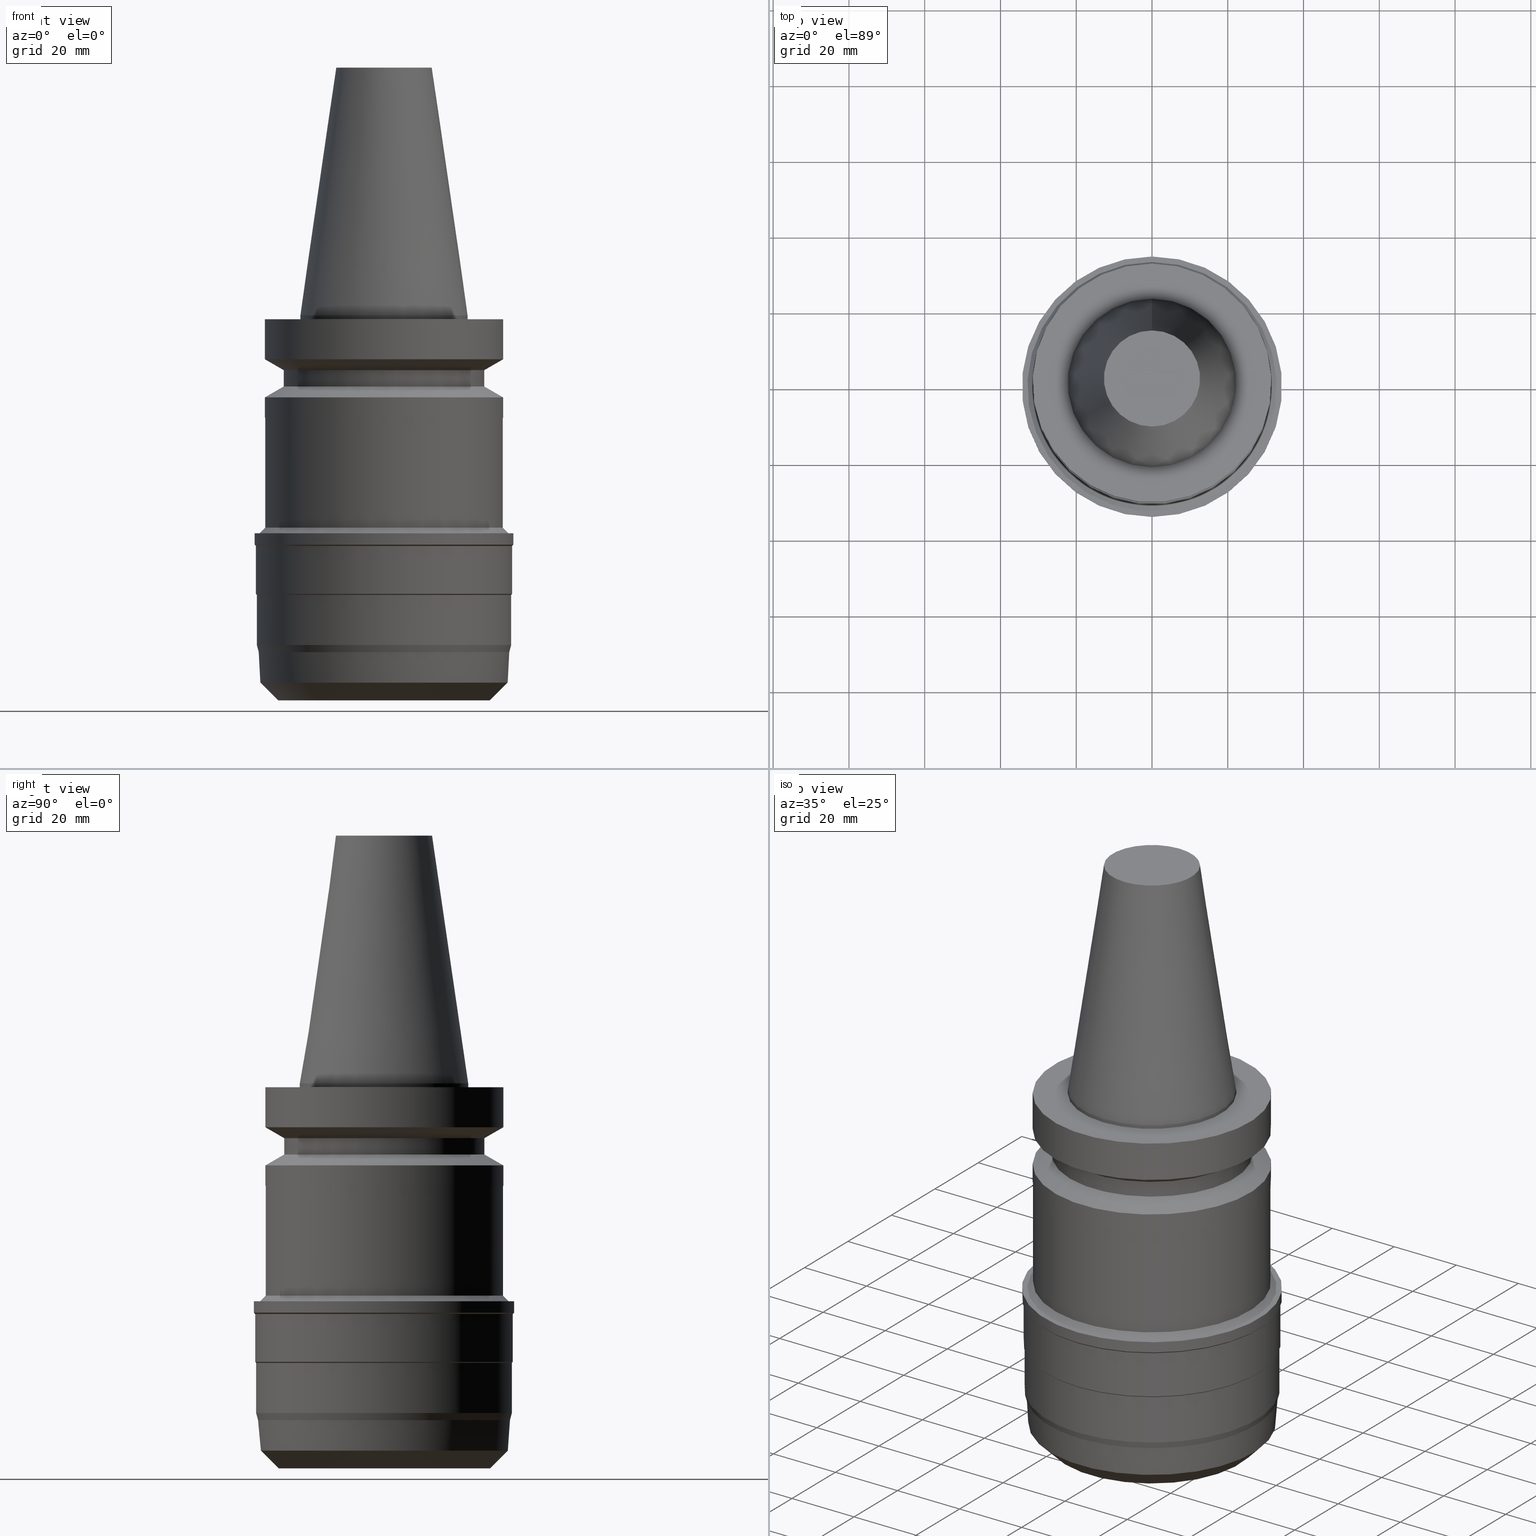
[diagram: canonical four-view strip — front | top / right | iso, engineering-drawing reading convention]
A machine part, canonical four-view strip (front | top / right | iso — engineering-drawing reading convention). The complete STEP part file that produces these views, byte-faithful:
ISO-10303-21;
HEADER;
FILE_DESCRIPTION((''),'1');
FILE_NAME('V:/90_\X2\53D65F9730C730FC30BF\X0\/00_\X2\6DE18DEF30C730FC30BF\X0\/ALL/BBT-BKUS\X2\FF76FF80FF9BFF78FF9E752852A05DE556F3\X0\201801/BBT40-HMC-S/BBT40-HMC1.250S-4.stp','2018-02-07T04:12:44',(''),(''),'Spatial Interop R21 SP3','Kubotek KeyCreator 2011 V10.0.2 (22737)',' ');
FILE_SCHEMA(('automotive_design'));
ENDSEC;
DATA;
#1=MECHANICAL_DESIGN_GEOMETRIC_PRESENTATION_REPRESENTATION(' ',(#10,#11,#12,#13,#14,#15,#16,#17,#18,#19,#20,#21,#22,#23,#24,#25,#26,#27,#28,#29,#30,#31,#32,#33,#34,#35,#36,#37,#38,#39,#40,#41,#42,#43,#44,#45,#46,#47,#48,#49,#50,#51,#52,#53),#6);
#2=PRODUCT_DEFINITION_CONTEXT('',#54,'design');
#3=APPLICATION_PROTOCOL_DEFINITION('INTERNATIONAL STANDARD','automotive_design',1994,#54);
#4=PRODUCT_CATEGORY_RELATIONSHIP('NONE','NONE',#55,#56);
#5=SHAPE_DEFINITION_REPRESENTATION(#57,#58);
#6= (GEOMETRIC_REPRESENTATION_CONTEXT(3)GLOBAL_UNCERTAINTY_ASSIGNED_CONTEXT((#61))GLOBAL_UNIT_ASSIGNED_CONTEXT((#63,#64,#65))REPRESENTATION_CONTEXT('NONE','WORKSPACE'));
#10=STYLED_ITEM('',(#67,#68),#69);
#11=STYLED_ITEM('',(#70,#71),#72);
#12=STYLED_ITEM('',(#73,#74),#75);
#13=STYLED_ITEM('',(#76),#77);
#14=STYLED_ITEM('',(#78,#79),#80);
#15=STYLED_ITEM('',(#81,#82),#83);
#16=STYLED_ITEM('',(#84),#85);
#17=STYLED_ITEM('',(#86,#87),#88);
#18=STYLED_ITEM('',(#89,#90),#91);
#19=STYLED_ITEM('',(#92),#93);
#20=STYLED_ITEM('',(#94),#95);
#21=STYLED_ITEM('',(#96),#97);
#22=STYLED_ITEM('',(#98),#99);
#23=STYLED_ITEM('',(#100),#101);
#24=STYLED_ITEM('',(#102),#103);
#25=STYLED_ITEM('',(#104,#105),#106);
#26=STYLED_ITEM('',(#107,#108),#109);
#27=STYLED_ITEM('',(#110,#111),#112);
#28=STYLED_ITEM('',(#113),#114);
#29=STYLED_ITEM('',(#115,#116),#117);
#30=STYLED_ITEM('',(#118,#119),#120);
#31=STYLED_ITEM('',(#121),#122);
#32=STYLED_ITEM('',(#123),#124);
#33=STYLED_ITEM('',(#125),#126);
#34=STYLED_ITEM('',(#127),#128);
#35=STYLED_ITEM('',(#129,#130),#131);
#36=STYLED_ITEM('',(#132,#133),#134);
#37=STYLED_ITEM('',(#135,#136),#137);
#38=STYLED_ITEM('',(#138,#139),#140);
#39=STYLED_ITEM('',(#141,#142),#143);
#40=STYLED_ITEM('',(#144),#145);
#41=STYLED_ITEM('',(#146),#147);
#42=STYLED_ITEM('',(#148,#149),#150);
#43=STYLED_ITEM('',(#151,#152),#153);
#44=STYLED_ITEM('',(#154),#155);
#45=STYLED_ITEM('',(#156),#157);
#46=STYLED_ITEM('',(#158,#159),#160);
#47=STYLED_ITEM('',(#161,#162),#163);
#48=STYLED_ITEM('',(#164),#165);
#49=STYLED_ITEM('',(#166,#167),#168);
#50=STYLED_ITEM('',(#169,#170),#171);
#51=STYLED_ITEM('',(#172),#173);
#52=STYLED_ITEM('',(#174),#175);
#53=STYLED_ITEM('',(#176),#177);
#54=APPLICATION_CONTEXT(' ');
#55=PRODUCT_CATEGORY('part','NONE');
#56=PRODUCT_RELATED_PRODUCT_CATEGORY('detail',' ',(#178));
#57=PRODUCT_DEFINITION_SHAPE('NONE','NONE',#179);
#58=ADVANCED_BREP_SHAPE_REPRESENTATION('Unnamed[1]',(#75,#180),#6);
#61=UNCERTAINTY_MEASURE_WITH_UNIT(LENGTH_MEASURE(1.0E-006),#63,'','');
#63= (CONVERSION_BASED_UNIT('MILLIMETRE',#183)LENGTH_UNIT()NAMED_UNIT(#186));
#64= (NAMED_UNIT(#188)PLANE_ANGLE_UNIT()SI_UNIT($,.RADIAN.));
#65= (NAMED_UNIT(#188)SOLID_ANGLE_UNIT()SI_UNIT($,.STERADIAN.));
#67=PRESENTATION_STYLE_ASSIGNMENT((#194));
#68=PRESENTATION_STYLE_ASSIGNMENT((#195));
#69=ADVANCED_FACE('Unnamed[1]',(#196,#197),#198,.T.);
#70=PRESENTATION_STYLE_ASSIGNMENT((#199));
#71=PRESENTATION_STYLE_ASSIGNMENT((#200));
#72=ADVANCED_FACE('Unnamed[1]',(#201,#202),#203,.T.);
#73=PRESENTATION_STYLE_ASSIGNMENT((#204));
#74=PRESENTATION_STYLE_ASSIGNMENT((#205));
#75=MANIFOLD_SOLID_BREP('Unnamed[1]',#206);
#76=PRESENTATION_STYLE_ASSIGNMENT((#207));
#77=EDGE_CURVE('Unnamed[1]',#208,#208,#209,.T.);
#78=PRESENTATION_STYLE_ASSIGNMENT((#210));
#79=PRESENTATION_STYLE_ASSIGNMENT((#211));
#80=ADVANCED_FACE('Unnamed[1]',(#212,#213),#214,.T.);
#81=PRESENTATION_STYLE_ASSIGNMENT((#215));
#82=PRESENTATION_STYLE_ASSIGNMENT((#216));
#83=ADVANCED_FACE('Unnamed[1]',(#217,#218),#219,.T.);
#84=PRESENTATION_STYLE_ASSIGNMENT((#220));
#85=EDGE_CURVE('Unnamed[1]',#221,#221,#222,.T.);
#86=PRESENTATION_STYLE_ASSIGNMENT((#223));
#87=PRESENTATION_STYLE_ASSIGNMENT((#224));
#88=ADVANCED_FACE('Unnamed[1]',(#225,#226),#227,.T.);
#89=PRESENTATION_STYLE_ASSIGNMENT((#228));
#90=PRESENTATION_STYLE_ASSIGNMENT((#229));
#91=ADVANCED_FACE('Unnamed[1]',(#230,#231),#232,.T.);
#92=PRESENTATION_STYLE_ASSIGNMENT((#233));
#93=EDGE_CURVE('Unnamed[1]',#234,#234,#235,.T.);
#94=PRESENTATION_STYLE_ASSIGNMENT((#236));
#95=EDGE_CURVE('Unnamed[1]',#237,#237,#238,.T.);
#96=PRESENTATION_STYLE_ASSIGNMENT((#239));
#97=EDGE_CURVE('Unnamed[1]',#240,#240,#241,.T.);
#98=PRESENTATION_STYLE_ASSIGNMENT((#242));
#99=EDGE_CURVE('Unnamed[1]',#243,#243,#244,.T.);
#100=PRESENTATION_STYLE_ASSIGNMENT((#245));
#101=EDGE_CURVE('Unnamed[1]',#246,#246,#247,.T.);
#102=PRESENTATION_STYLE_ASSIGNMENT((#248));
#103=EDGE_CURVE('Unnamed[1]',#249,#249,#250,.T.);
#104=PRESENTATION_STYLE_ASSIGNMENT((#251));
#105=PRESENTATION_STYLE_ASSIGNMENT((#252));
#106=ADVANCED_FACE('Unnamed[1]',(#253,#254),#255,.T.);
#107=PRESENTATION_STYLE_ASSIGNMENT((#256));
#108=PRESENTATION_STYLE_ASSIGNMENT((#257));
#109=ADVANCED_FACE('Unnamed[1]',(#258,#259),#260,.T.);
#110=PRESENTATION_STYLE_ASSIGNMENT((#261));
#111=PRESENTATION_STYLE_ASSIGNMENT((#262));
#112=ADVANCED_FACE('Unnamed[1]',(#263,#264),#265,.T.);
#113=PRESENTATION_STYLE_ASSIGNMENT((#266));
#114=EDGE_CURVE('Unnamed[1]',#267,#267,#268,.T.);
#115=PRESENTATION_STYLE_ASSIGNMENT((#269));
#116=PRESENTATION_STYLE_ASSIGNMENT((#270));
#117=ADVANCED_FACE('Unnamed[1]',(#271,#272),#273,.T.);
#118=PRESENTATION_STYLE_ASSIGNMENT((#274));
#119=PRESENTATION_STYLE_ASSIGNMENT((#275));
#120=ADVANCED_FACE('Unnamed[1]',(#276),#277,.T.);
#121=PRESENTATION_STYLE_ASSIGNMENT((#278));
#122=EDGE_CURVE('Unnamed[1]',#279,#279,#280,.T.);
#123=PRESENTATION_STYLE_ASSIGNMENT((#281));
#124=EDGE_CURVE('Unnamed[1]',#282,#282,#283,.T.);
#125=PRESENTATION_STYLE_ASSIGNMENT((#284));
#126=EDGE_CURVE('Unnamed[1]',#285,#285,#286,.T.);
#127=PRESENTATION_STYLE_ASSIGNMENT((#287));
#128=EDGE_CURVE('Unnamed[1]',#288,#288,#289,.T.);
#129=PRESENTATION_STYLE_ASSIGNMENT((#290));
#130=PRESENTATION_STYLE_ASSIGNMENT((#291));
#131=ADVANCED_FACE('Unnamed[1]',(#292,#293),#294,.T.);
#132=PRESENTATION_STYLE_ASSIGNMENT((#295));
#133=PRESENTATION_STYLE_ASSIGNMENT((#296));
#134=ADVANCED_FACE('Unnamed[1]',(#297,#298),#299,.T.);
#135=PRESENTATION_STYLE_ASSIGNMENT((#300));
#136=PRESENTATION_STYLE_ASSIGNMENT((#301));
#137=ADVANCED_FACE('Unnamed[1]',(#302,#303),#304,.T.);
#138=PRESENTATION_STYLE_ASSIGNMENT((#305));
#139=PRESENTATION_STYLE_ASSIGNMENT((#306));
#140=ADVANCED_FACE('Unnamed[1]',(#307,#308),#309,.T.);
#141=PRESENTATION_STYLE_ASSIGNMENT((#310));
#142=PRESENTATION_STYLE_ASSIGNMENT((#311));
#143=ADVANCED_FACE('Unnamed[1]',(#312,#313),#314,.T.);
#144=PRESENTATION_STYLE_ASSIGNMENT((#315));
#145=EDGE_CURVE('Unnamed[1]',#316,#316,#317,.T.);
#146=PRESENTATION_STYLE_ASSIGNMENT((#318));
#147=EDGE_CURVE('Unnamed[1]',#319,#319,#320,.T.);
#148=PRESENTATION_STYLE_ASSIGNMENT((#321));
#149=PRESENTATION_STYLE_ASSIGNMENT((#322));
#150=ADVANCED_FACE('Unnamed[1]',(#323,#324),#325,.T.);
#151=PRESENTATION_STYLE_ASSIGNMENT((#326));
#152=PRESENTATION_STYLE_ASSIGNMENT((#327));
#153=ADVANCED_FACE('Unnamed[1]',(#328,#329),#330,.T.);
#154=PRESENTATION_STYLE_ASSIGNMENT((#331));
#155=EDGE_CURVE('Unnamed[1]',#332,#332,#333,.T.);
#156=PRESENTATION_STYLE_ASSIGNMENT((#334));
#157=EDGE_CURVE('Unnamed[1]',#335,#335,#336,.T.);
#158=PRESENTATION_STYLE_ASSIGNMENT((#337));
#159=PRESENTATION_STYLE_ASSIGNMENT((#338));
#160=ADVANCED_FACE('Unnamed[1]',(#339,#340),#341,.T.);
#161=PRESENTATION_STYLE_ASSIGNMENT((#342));
#162=PRESENTATION_STYLE_ASSIGNMENT((#343));
#163=ADVANCED_FACE('Unnamed[1]',(#344,#345),#346,.T.);
#164=PRESENTATION_STYLE_ASSIGNMENT((#347));
#165=EDGE_CURVE('Unnamed[1]',#348,#348,#349,.T.);
#166=PRESENTATION_STYLE_ASSIGNMENT((#350));
#167=PRESENTATION_STYLE_ASSIGNMENT((#351));
#168=ADVANCED_FACE('Unnamed[1]',(#352),#353,.T.);
#169=PRESENTATION_STYLE_ASSIGNMENT((#354));
#170=PRESENTATION_STYLE_ASSIGNMENT((#355));
#171=ADVANCED_FACE('Unnamed[1]',(#356,#357),#358,.T.);
#172=PRESENTATION_STYLE_ASSIGNMENT((#359));
#173=EDGE_CURVE('Unnamed[1]',#360,#360,#361,.T.);
#174=PRESENTATION_STYLE_ASSIGNMENT((#362));
#175=EDGE_CURVE('Unnamed[1]',#363,#363,#364,.T.);
#176=PRESENTATION_STYLE_ASSIGNMENT((#365));
#177=EDGE_CURVE('Unnamed[1]',#366,#366,#367,.T.);
#178=PRODUCT('Unnamed[1]','Unnamed[1]','PART-Unnamed[1]-DESC',(#368));
#179=PRODUCT_DEFINITION('NONE','NONE',#369,#2);
#180=AXIS2_PLACEMENT_3D('',#370,#371,#372);
#183=LENGTH_MEASURE_WITH_UNIT(LENGTH_MEASURE(1.0),#373);
#186=DIMENSIONAL_EXPONENTS(1.0,0.0,0.0,0.0,0.0,0.0,0.0);
#188=DIMENSIONAL_EXPONENTS(0.0,0.0,0.0,0.0,0.0,0.0,0.0);
#194=SURFACE_STYLE_USAGE(.BOTH.,#374);
#195=CURVE_STYLE('',#375,POSITIVE_LENGTH_MEASURE(1000.0),#376);
#196=FACE_BOUND('',#377,.T.);
#197=FACE_BOUND('',#378,.T.);
#198=CYLINDRICAL_SURFACE('',#379,34.35);
#199=SURFACE_STYLE_USAGE(.BOTH.,#380);
#200=CURVE_STYLE('',#381,POSITIVE_LENGTH_MEASURE(1000.0),#382);
#201=FACE_BOUND('',#383,.T.);
#202=FACE_BOUND('',#384,.T.);
#203=CYLINDRICAL_SURFACE('',#385,33.75);
#204=SURFACE_STYLE_USAGE(.BOTH.,#386);
#205=CURVE_STYLE('',#387,POSITIVE_LENGTH_MEASURE(1000.0),#388);
#206=CLOSED_SHELL('',(#168,#117,#109,#91,#160,#106,#83,#140,#112,#131,#134,#150,#88,#69,#163,#171,#137,#72,#80,#153,#143,#120));
#207=CURVE_STYLE('',#389,POSITIVE_LENGTH_MEASURE(1000.0),#390);
#208=VERTEX_POINT('',#391);
#209=CIRCLE('',#392,32.9);
#210=SURFACE_STYLE_USAGE(.BOTH.,#393);
#211=CURVE_STYLE('',#394,POSITIVE_LENGTH_MEASURE(1000.0),#395);
#212=FACE_BOUND('',#396,.T.);
#213=FACE_BOUND('',#397,.T.);
#214=CONICAL_SURFACE('',#398,33.5,0.26179938830617);
#215=SURFACE_STYLE_USAGE(.BOTH.,#399);
#216=CURVE_STYLE('',#400,POSITIVE_LENGTH_MEASURE(1000.0),#401);
#217=FACE_BOUND('',#402,.T.);
#218=FACE_BOUND('',#403,.T.);
#219=CYLINDRICAL_SURFACE('',#404,26.4999999999997);
#220=CURVE_STYLE('',#405,POSITIVE_LENGTH_MEASURE(1000.0),#406);
#221=VERTEX_POINT('',#407);
#222=CIRCLE('',#408,22.2250000000001);
#223=SURFACE_STYLE_USAGE(.BOTH.,#409);
#224=CURVE_STYLE('',#410,POSITIVE_LENGTH_MEASURE(1000.0),#411);
#225=FACE_OUTER_BOUND('',#412,.T.);
#226=FACE_BOUND('',#413,.T.);
#227=PLANE('',#414);
#228=SURFACE_STYLE_USAGE(.BOTH.,#415);
#229=CURVE_STYLE('',#416,POSITIVE_LENGTH_MEASURE(1000.0),#417);
#230=FACE_OUTER_BOUND('',#418,.T.);
#231=FACE_BOUND('',#419,.T.);
#232=PLANE('',#420);
#233=CURVE_STYLE('',#421,POSITIVE_LENGTH_MEASURE(1000.0),#422);
#234=VERTEX_POINT('',#423);
#235=CIRCLE('',#424,31.4999999999997);
#236=CURVE_STYLE('',#425,POSITIVE_LENGTH_MEASURE(1000.0),#426);
#237=VERTEX_POINT('',#427);
#238=CIRCLE('',#428,26.5);
#239=CURVE_STYLE('',#429,POSITIVE_LENGTH_MEASURE(1000.0),#430);
#240=VERTEX_POINT('',#431);
#241=CIRCLE('',#432,31.4);
#242=CURVE_STYLE('',#433,POSITIVE_LENGTH_MEASURE(1000.0),#434);
#243=VERTEX_POINT('',#435);
#244=CIRCLE('',#436,34.35);
#245=CURVE_STYLE('',#437,POSITIVE_LENGTH_MEASURE(1000.0),#438);
#246=VERTEX_POINT('',#439);
#247=CIRCLE('',#440,34.0);
#248=CURVE_STYLE('',#441,POSITIVE_LENGTH_MEASURE(1000.0),#442);
#249=VERTEX_POINT('',#443);
#250=CIRCLE('',#444,12.6875000000002);
#251=SURFACE_STYLE_USAGE(.BOTH.,#445);
#252=CURVE_STYLE('',#446,POSITIVE_LENGTH_MEASURE(1000.0),#447);
#253=FACE_BOUND('',#448,.T.);
#254=FACE_BOUND('',#449,.T.);
#255=CONICAL_SURFACE('',#450,28.9999999999999,1.04719755119657);
#256=SURFACE_STYLE_USAGE(.BOTH.,#451);
#257=CURVE_STYLE('',#452,POSITIVE_LENGTH_MEASURE(1000.0),#453);
#258=FACE_BOUND('',#454,.T.);
#259=FACE_BOUND('',#455,.T.);
#260=CYLINDRICAL_SURFACE('',#456,22.2250000000001);
#261=SURFACE_STYLE_USAGE(.BOTH.,#457);
#262=CURVE_STYLE('',#458,POSITIVE_LENGTH_MEASURE(1000.0),#459);
#263=FACE_BOUND('',#460,.T.);
#264=FACE_BOUND('',#461,.T.);
#265=CYLINDRICAL_SURFACE('',#462,31.5);
#266=CURVE_STYLE('',#463,POSITIVE_LENGTH_MEASURE(1000.0),#464);
#267=VERTEX_POINT('',#465);
#268=CIRCLE('',#466,33.75);
#269=SURFACE_STYLE_USAGE(.BOTH.,#467);
#270=CURVE_STYLE('',#468,POSITIVE_LENGTH_MEASURE(1000.0),#469);
#271=FACE_BOUND('',#470,.T.);
#272=FACE_BOUND('',#471,.T.);
#273=CONICAL_SURFACE('',#472,17.4562500000001,0.144812498238936);
#274=SURFACE_STYLE_USAGE(.BOTH.,#473);
#275=CURVE_STYLE('',#474,POSITIVE_LENGTH_MEASURE(1000.0),#475);
#276=FACE_OUTER_BOUND('',#476,.T.);
#277=PLANE('',#477);
#278=CURVE_STYLE('',#478,POSITIVE_LENGTH_MEASURE(1000.0),#479);
#279=VERTEX_POINT('',#480);
#280=CIRCLE('',#481,31.5000000000004);
#281=CURVE_STYLE('',#482,POSITIVE_LENGTH_MEASURE(1000.0),#483);
#282=VERTEX_POINT('',#484);
#283=CIRCLE('',#485,33.25);
#284=CURVE_STYLE('',#486,POSITIVE_LENGTH_MEASURE(1000.0),#487);
#285=VERTEX_POINT('',#488);
#286=CIRCLE('',#489,22.2250000000001);
#287=CURVE_STYLE('',#490,POSITIVE_LENGTH_MEASURE(1000.0),#491);
#288=VERTEX_POINT('',#492);
#289=CIRCLE('',#493,34.35);
#290=SURFACE_STYLE_USAGE(.BOTH.,#494);
#291=CURVE_STYLE('',#495,POSITIVE_LENGTH_MEASURE(1000.0),#496);
#292=FACE_BOUND('',#497,.T.);
#293=FACE_OUTER_BOUND('',#498,.T.);
#294=PLANE('',#499);
#295=SURFACE_STYLE_USAGE(.BOTH.,#500);
#296=CURVE_STYLE('',#501,POSITIVE_LENGTH_MEASURE(1000.0),#502);
#297=FACE_BOUND('',#503,.T.);
#298=FACE_BOUND('',#504,.T.);
#299=CYLINDRICAL_SURFACE('',#505,31.3999999999999);
#300=SURFACE_STYLE_USAGE(.BOTH.,#506);
#301=CURVE_STYLE('',#507,POSITIVE_LENGTH_MEASURE(1000.0),#508);
#302=FACE_BOUND('',#509,.T.);
#303=FACE_BOUND('',#510,.T.);
#304=CONICAL_SURFACE('',#511,33.875,0.785398163397448);
#305=SURFACE_STYLE_USAGE(.BOTH.,#512);
#306=CURVE_STYLE('',#513,POSITIVE_LENGTH_MEASURE(1000.0),#514);
#307=FACE_BOUND('',#515,.T.);
#308=FACE_BOUND('',#516,.T.);
#309=CONICAL_SURFACE('',#517,29.0,1.04719755119651);
#310=SURFACE_STYLE_USAGE(.BOTH.,#518);
#311=CURVE_STYLE('',#519,POSITIVE_LENGTH_MEASURE(1000.0),#520);
#312=FACE_BOUND('',#521,.T.);
#313=FACE_BOUND('',#522,.T.);
#314=CONICAL_SURFACE('',#523,30.3436616645171,0.785398163397446);
#315=CURVE_STYLE('',#524,POSITIVE_LENGTH_MEASURE(1000.0),#525);
#316=VERTEX_POINT('',#526);
#317=CIRCLE('',#527,33.75);
#318=CURVE_STYLE('',#528,POSITIVE_LENGTH_MEASURE(1000.0),#529);
#319=VERTEX_POINT('',#530);
#320=CIRCLE('',#531,32.6873233290342);
#321=SURFACE_STYLE_USAGE(.BOTH.,#532);
#322=CURVE_STYLE('',#533,POSITIVE_LENGTH_MEASURE(1000.0),#534);
#323=FACE_BOUND('',#535,.T.);
#324=FACE_BOUND('',#536,.T.);
#325=CONICAL_SURFACE('',#537,32.15,0.785398163397442);
#326=SURFACE_STYLE_USAGE(.BOTH.,#538);
#327=CURVE_STYLE('',#539,POSITIVE_LENGTH_MEASURE(1000.0),#540);
#328=FACE_BOUND('',#541,.T.);
#329=FACE_BOUND('',#542,.T.);
#330=CONICAL_SURFACE('',#543,32.9686616645171,0.0698131701744978);
#331=CURVE_STYLE('',#544,POSITIVE_LENGTH_MEASURE(1000.0),#545);
#332=VERTEX_POINT('',#546);
#333=CIRCLE('',#547,31.3999999999998);
#334=CURVE_STYLE('',#548,POSITIVE_LENGTH_MEASURE(1000.0),#549);
#335=VERTEX_POINT('',#550);
#336=CIRCLE('',#551,28.0);
#337=SURFACE_STYLE_USAGE(.BOTH.,#552);
#338=CURVE_STYLE('',#553,POSITIVE_LENGTH_MEASURE(1000.0),#554);
#339=FACE_BOUND('',#555,.T.);
#340=FACE_BOUND('',#556,.T.);
#341=CYLINDRICAL_SURFACE('',#557,31.5);
#342=SURFACE_STYLE_USAGE(.BOTH.,#558);
#343=CURVE_STYLE('',#559,POSITIVE_LENGTH_MEASURE(1000.0),#560);
#344=FACE_BOUND('',#561,.T.);
#345=FACE_BOUND('',#562,.T.);
#346=CONICAL_SURFACE('',#563,34.175,0.785398163397448);
#347=CURVE_STYLE('',#564,POSITIVE_LENGTH_MEASURE(1000.0),#565);
#348=VERTEX_POINT('',#566);
#349=CIRCLE('',#567,34.0);
#350=SURFACE_STYLE_USAGE(.BOTH.,#568);
#351=CURVE_STYLE('',#569,POSITIVE_LENGTH_MEASURE(1000.0),#570);
#352=FACE_OUTER_BOUND('',#571,.T.);
#353=PLANE('',#572);
#354=SURFACE_STYLE_USAGE(.BOTH.,#573);
#355=CURVE_STYLE('',#574,POSITIVE_LENGTH_MEASURE(1000.0),#575);
#356=FACE_BOUND('',#576,.T.);
#357=FACE_BOUND('',#577,.T.);
#358=CYLINDRICAL_SURFACE('',#578,34.0);
#359=CURVE_STYLE('',#579,POSITIVE_LENGTH_MEASURE(1000.0),#580);
#360=VERTEX_POINT('',#581);
#361=CIRCLE('',#582,26.4999999999995);
#362=CURVE_STYLE('',#583,POSITIVE_LENGTH_MEASURE(1000.0),#584);
#363=VERTEX_POINT('',#585);
#364=CIRCLE('',#586,31.5);
#365=CURVE_STYLE('',#587,POSITIVE_LENGTH_MEASURE(1000.0),#588);
#366=VERTEX_POINT('',#589);
#367=CIRCLE('',#590,31.5);
#368=PRODUCT_CONTEXT('',#54,'mechanical');
#369=PRODUCT_DEFINITION_FORMATION_WITH_SPECIFIED_SOURCE(' ','NONE',#178,.NOT_KNOWN.);
#370=CARTESIAN_POINT('',(0.0,0.0,0.0));
#371=DIRECTION('',(0.0,0.0,1.0));
#372=DIRECTION('',(1.0,0.0,0.0));
#373= (NAMED_UNIT(#186)LENGTH_UNIT()SI_UNIT(.MILLI.,.METRE.));
#374=SURFACE_SIDE_STYLE('',(#592));
#375=DRAUGHTING_PRE_DEFINED_CURVE_FONT('continuous');
#376=COLOUR_RGB('',0.0,1.0,0.0);
#377=EDGE_LOOP('',(#593));
#378=EDGE_LOOP('',(#594));
#379=AXIS2_PLACEMENT_3D('',#595,#596,#597);
#380=SURFACE_SIDE_STYLE('',(#598));
#381=DRAUGHTING_PRE_DEFINED_CURVE_FONT('continuous');
#382=COLOUR_RGB('',0.0,1.0,0.0);
#383=EDGE_LOOP('',(#599));
#384=EDGE_LOOP('',(#600));
#385=AXIS2_PLACEMENT_3D('',#601,#602,#603);
#386=SURFACE_SIDE_STYLE('',(#604));
#387=DRAUGHTING_PRE_DEFINED_CURVE_FONT('continuous');
#388=COLOUR_RGB('',0.0,1.0,0.0);
#389=DRAUGHTING_PRE_DEFINED_CURVE_FONT('continuous');
#390=COLOUR_RGB('',0.0,1.0,0.0);
#391=CARTESIAN_POINT('',(3.52085954754864E-015,32.9,-57.5));
#392=AXIS2_PLACEMENT_3D('',#605,#606,#607);
#393=SURFACE_SIDE_STYLE('',(#608));
#394=DRAUGHTING_PRE_DEFINED_CURVE_FONT('continuous');
#395=COLOUR_RGB('',0.0,1.0,0.0);
#396=EDGE_LOOP('',(#609));
#397=EDGE_LOOP('',(#610));
#398=AXIS2_PLACEMENT_3D('',#611,#612,#613);
#399=SURFACE_SIDE_STYLE('',(#614));
#400=DRAUGHTING_PRE_DEFINED_CURVE_FONT('continuous');
#401=COLOUR_RGB('',0.0,1.0,0.0);
#402=EDGE_LOOP('',(#615));
#403=EDGE_LOOP('',(#616));
#404=AXIS2_PLACEMENT_3D('',#617,#618,#619);
#405=DRAUGHTING_PRE_DEFINED_CURVE_FONT('continuous');
#406=COLOUR_RGB('',0.0,1.0,0.0);
#407=CARTESIAN_POINT('',(6.12323399573622E-017,22.2250000000001,-0.999999999999912));
#408=AXIS2_PLACEMENT_3D('',#620,#621,#622);
#409=SURFACE_SIDE_STYLE('',(#623));
#410=DRAUGHTING_PRE_DEFINED_CURVE_FONT('continuous');
#411=COLOUR_RGB('',0.0,1.0,0.0);
#412=EDGE_LOOP('',(#624));
#413=EDGE_LOOP('',(#625));
#414=AXIS2_PLACEMENT_3D('',#626,#627,#628);
#415=SURFACE_SIDE_STYLE('',(#629));
#416=DRAUGHTING_PRE_DEFINED_CURVE_FONT('continuous');
#417=COLOUR_RGB('',0.0,1.0,0.0);
#418=EDGE_LOOP('',(#630));
#419=EDGE_LOOP('',(#631));
#420=AXIS2_PLACEMENT_3D('',#632,#633,#634);
#421=DRAUGHTING_PRE_DEFINED_CURVE_FONT('continuous');
#422=COLOUR_RGB('',0.0,1.0,0.0);
#423=CARTESIAN_POINT('',(6.12323399573568E-017,31.4999999999997,-0.999999999999825));
#424=AXIS2_PLACEMENT_3D('',#635,#636,#637);
#425=DRAUGHTING_PRE_DEFINED_CURVE_FONT('continuous');
#426=COLOUR_RGB('',0.0,1.0,0.0);
#427=CARTESIAN_POINT('',(1.1479681728942E-015,26.5,-18.7477430013855));
#428=AXIS2_PLACEMENT_3D('',#638,#639,#640);
#429=DRAUGHTING_PRE_DEFINED_CURVE_FONT('continuous');
#430=COLOUR_RGB('',0.0,1.0,0.0);
#431=CARTESIAN_POINT('',(3.42901103761259E-015,31.4,-56.0));
#432=AXIS2_PLACEMENT_3D('',#641,#642,#643);
#433=DRAUGHTING_PRE_DEFINED_CURVE_FONT('continuous');
#434=COLOUR_RGB('',0.0,1.0,0.0);
#435=CARTESIAN_POINT('',(3.70455656742074E-015,34.35,-60.5));
#436=AXIS2_PLACEMENT_3D('',#644,#645,#646);
#437=DRAUGHTING_PRE_DEFINED_CURVE_FONT('continuous');
#438=COLOUR_RGB('',0.0,1.0,0.0);
#439=CARTESIAN_POINT('',(4.50057698686652E-015,34.0,-73.5));
#440=AXIS2_PLACEMENT_3D('',#647,#648,#649);
#441=DRAUGHTING_PRE_DEFINED_CURVE_FONT('continuous');
#442=COLOUR_RGB('',0.0,1.0,0.0);
#443=CARTESIAN_POINT('',(-4.00459503321185E-015,12.6875000000002,65.4000000000001));
#444=AXIS2_PLACEMENT_3D('',#650,#651,#652);
#445=SURFACE_SIDE_STYLE('',(#653));
#446=DRAUGHTING_PRE_DEFINED_CURVE_FONT('continuous');
#447=COLOUR_RGB('',0.0,1.0,0.0);
#448=EDGE_LOOP('',(#654));
#449=EDGE_LOOP('',(#655));
#450=AXIS2_PLACEMENT_3D('',#656,#657,#658);
#451=SURFACE_SIDE_STYLE('',(#659));
#452=DRAUGHTING_PRE_DEFINED_CURVE_FONT('continuous');
#453=COLOUR_RGB('',0.0,1.0,0.0);
#454=EDGE_LOOP('',(#660));
#455=EDGE_LOOP('',(#661));
#456=AXIS2_PLACEMENT_3D('',#662,#663,#664);
#457=SURFACE_SIDE_STYLE('',(#665));
#458=DRAUGHTING_PRE_DEFINED_CURVE_FONT('continuous');
#459=COLOUR_RGB('',0.0,1.0,0.0);
#460=EDGE_LOOP('',(#666));
#461=EDGE_LOOP('',(#667));
#462=AXIS2_PLACEMENT_3D('',#668,#669,#670);
#463=DRAUGHTING_PRE_DEFINED_CURVE_FONT('continuous');
#464=COLOUR_RGB('',0.0,1.0,0.0);
#465=CARTESIAN_POINT('',(5.32721357629098E-015,33.75,-87.0));
#466=AXIS2_PLACEMENT_3D('',#671,#672,#673);
#467=SURFACE_SIDE_STYLE('',(#674));
#468=DRAUGHTING_PRE_DEFINED_CURVE_FONT('continuous');
#469=COLOUR_RGB('',0.0,1.0,0.0);
#470=EDGE_LOOP('',(#675));
#471=EDGE_LOOP('',(#676));
#472=AXIS2_PLACEMENT_3D('',#677,#678,#679);
#473=SURFACE_SIDE_STYLE('',(#680));
#474=DRAUGHTING_PRE_DEFINED_CURVE_FONT('continuous');
#475=COLOUR_RGB('',0.0,1.0,0.0);
#476=EDGE_LOOP('',(#681));
#477=AXIS2_PLACEMENT_3D('',#682,#683,#684);
#478=DRAUGHTING_PRE_DEFINED_CURVE_FONT('continuous');
#479=COLOUR_RGB('',0.0,1.0,0.0);
#480=CARTESIAN_POINT('',(7.08182973902924E-016,31.5000000000004,-11.5655056526664));
#481=AXIS2_PLACEMENT_3D('',#685,#686,#687);
#482=DRAUGHTING_PRE_DEFINED_CURVE_FONT('continuous');
#483=COLOUR_RGB('',0.0,1.0,0.0);
#484=CARTESIAN_POINT('',(5.44147467795287E-015,33.25,-88.8660254));
#485=AXIS2_PLACEMENT_3D('',#688,#689,#690);
#486=DRAUGHTING_PRE_DEFINED_CURVE_FONT('continuous');
#487=COLOUR_RGB('',0.0,1.0,0.0);
#488=CARTESIAN_POINT('',(1.71319921032766E-029,22.2250000000001,-2.8153873565375E-013));
#489=AXIS2_PLACEMENT_3D('',#691,#692,#693);
#490=DRAUGHTING_PRE_DEFINED_CURVE_FONT('continuous');
#491=COLOUR_RGB('',0.0,1.0,0.0);
#492=CARTESIAN_POINT('',(3.52085954754864E-015,34.35,-57.5));
#493=AXIS2_PLACEMENT_3D('',#694,#695,#696);
#494=SURFACE_SIDE_STYLE('',(#697));
#495=DRAUGHTING_PRE_DEFINED_CURVE_FONT('continuous');
#496=COLOUR_RGB('',0.0,1.0,0.0);
#497=EDGE_LOOP('',(#698));
#498=EDGE_LOOP('',(#699));
#499=AXIS2_PLACEMENT_3D('',#700,#701,#702);
#500=SURFACE_SIDE_STYLE('',(#703));
#501=DRAUGHTING_PRE_DEFINED_CURVE_FONT('continuous');
#502=COLOUR_RGB('',0.0,1.0,0.0);
#503=EDGE_LOOP('',(#704));
#504=EDGE_LOOP('',(#705));
#505=AXIS2_PLACEMENT_3D('',#706,#707,#708);
#506=SURFACE_SIDE_STYLE('',(#709));
#507=DRAUGHTING_PRE_DEFINED_CURVE_FONT('continuous');
#508=COLOUR_RGB('',0.0,1.0,0.0);
#509=EDGE_LOOP('',(#710));
#510=EDGE_LOOP('',(#711));
#511=AXIS2_PLACEMENT_3D('',#712,#713,#714);
#512=SURFACE_SIDE_STYLE('',(#715));
#513=DRAUGHTING_PRE_DEFINED_CURVE_FONT('continuous');
#514=COLOUR_RGB('',0.0,1.0,0.0);
#515=EDGE_LOOP('',(#716));
#516=EDGE_LOOP('',(#717));
#517=AXIS2_PLACEMENT_3D('',#718,#719,#720);
#518=SURFACE_SIDE_STYLE('',(#721));
#519=DRAUGHTING_PRE_DEFINED_CURVE_FONT('continuous');
#520=COLOUR_RGB('',0.0,1.0,0.0);
#521=EDGE_LOOP('',(#722));
#522=EDGE_LOOP('',(#723));
#523=AXIS2_PLACEMENT_3D('',#724,#725,#726);
#524=DRAUGHTING_PRE_DEFINED_CURVE_FONT('continuous');
#525=COLOUR_RGB('',0.0,1.0,0.0);
#526=CARTESIAN_POINT('',(4.51588507185586E-015,33.75,-73.75));
#527=AXIS2_PLACEMENT_3D('',#727,#728,#729);
#528=DRAUGHTING_PRE_DEFINED_CURVE_FONT('continuous');
#529=COLOUR_RGB('',0.0,1.0,0.0);
#530=CARTESIAN_POINT('',(5.93418996409503E-015,32.6873233290342,-96.9126766709658));
#531=AXIS2_PLACEMENT_3D('',#730,#731,#732);
#532=SURFACE_SIDE_STYLE('',(#733));
#533=DRAUGHTING_PRE_DEFINED_CURVE_FONT('continuous');
#534=COLOUR_RGB('',0.0,1.0,0.0);
#535=EDGE_LOOP('',(#734));
#536=EDGE_LOOP('',(#735));
#537=AXIS2_PLACEMENT_3D('',#736,#737,#738);
#538=SURFACE_SIDE_STYLE('',(#739));
#539=DRAUGHTING_PRE_DEFINED_CURVE_FONT('continuous');
#540=COLOUR_RGB('',0.0,1.0,0.0);
#541=EDGE_LOOP('',(#740));
#542=EDGE_LOOP('',(#741));
#543=AXIS2_PLACEMENT_3D('',#742,#743,#744);
#544=DRAUGHTING_PRE_DEFINED_CURVE_FONT('continuous');
#545=COLOUR_RGB('',0.0,1.0,0.0);
#546=CARTESIAN_POINT('',(1.65327317884893E-015,31.3999999999998,-27.0));
#547=AXIS2_PLACEMENT_3D('',#745,#746,#747);
#548=DRAUGHTING_PRE_DEFINED_CURVE_FONT('continuous');
#549=COLOUR_RGB('',0.0,1.0,0.0);
#550=CARTESIAN_POINT('',(6.22120573966855E-015,28.0,-101.6));
#551=AXIS2_PLACEMENT_3D('',#748,#749,#750);
#552=SURFACE_SIDE_STYLE('',(#751));
#553=DRAUGHTING_PRE_DEFINED_CURVE_FONT('continuous');
#554=COLOUR_RGB('',0.0,1.0,0.0);
#555=EDGE_LOOP('',(#752));
#556=EDGE_LOOP('',(#753));
#557=AXIS2_PLACEMENT_3D('',#754,#755,#756);
#558=SURFACE_SIDE_STYLE('',(#757));
#559=DRAUGHTING_PRE_DEFINED_CURVE_FONT('continuous');
#560=COLOUR_RGB('',0.0,1.0,0.0);
#561=EDGE_LOOP('',(#758));
#562=EDGE_LOOP('',(#759));
#563=AXIS2_PLACEMENT_3D('',#760,#761,#762);
#564=DRAUGHTING_PRE_DEFINED_CURVE_FONT('continuous');
#565=COLOUR_RGB('',0.0,1.0,0.0);
#566=CARTESIAN_POINT('',(3.72598788640582E-015,34.0,-60.85));
#567=AXIS2_PLACEMENT_3D('',#763,#764,#765);
#568=SURFACE_SIDE_STYLE('',(#766));
#569=DRAUGHTING_PRE_DEFINED_CURVE_FONT('continuous');
#570=COLOUR_RGB('',0.0,1.0,0.0);
#571=EDGE_LOOP('',(#767));
#572=AXIS2_PLACEMENT_3D('',#768,#769,#770);
#573=SURFACE_SIDE_STYLE('',(#771));
#574=DRAUGHTING_PRE_DEFINED_CURVE_FONT('continuous');
#575=COLOUR_RGB('',0.0,1.0,0.0);
#576=EDGE_LOOP('',(#772));
#577=EDGE_LOOP('',(#773));
#578=AXIS2_PLACEMENT_3D('',#774,#775,#776);
#579=DRAUGHTING_PRE_DEFINED_CURVE_FONT('continuous');
#580=COLOUR_RGB('',0.0,1.0,0.0);
#581=CARTESIAN_POINT('',(8.8494551369045E-016,26.4999999999995,-14.4522569986152));
#582=AXIS2_PLACEMENT_3D('',#777,#778,#779);
#583=DRAUGHTING_PRE_DEFINED_CURVE_FONT('continuous');
#584=COLOUR_RGB('',0.0,1.0,0.0);
#585=CARTESIAN_POINT('',(1.32473071268172E-015,31.5,-21.6344943473342));
#586=AXIS2_PLACEMENT_3D('',#780,#781,#782);
#587=DRAUGHTING_PRE_DEFINED_CURVE_FONT('continuous');
#588=COLOUR_RGB('',0.0,1.0,0.0);
#589=CARTESIAN_POINT('',(1.65327317884893E-015,31.5,-27.0));
#590=AXIS2_PLACEMENT_3D('',#783,#784,#785);
#592=SURFACE_STYLE_FILL_AREA(#786);
#593=ORIENTED_EDGE('',*,*,#99,.F.);
#594=ORIENTED_EDGE('',*,*,#128,.T.);
#595=CARTESIAN_POINT('',(3.61270805748469E-015,7.22541611496938E-015,-59.0));
#596=DIRECTION('',(6.12323399573677E-017,1.22464679914757E-016,-1.0));
#597=DIRECTION('',(-1.23259516440804E-032,1.0,1.22464679914757E-016));
#598=SURFACE_STYLE_FILL_AREA(#787);
#599=ORIENTED_EDGE('',*,*,#114,.F.);
#600=ORIENTED_EDGE('',*,*,#145,.T.);
#601=CARTESIAN_POINT('',(4.92154932407342E-015,9.84309864814685E-015,-80.375));
#602=DIRECTION('',(6.12323399573677E-017,1.22464679914729E-016,-1.0));
#603=DIRECTION('',(-1.23259516440783E-032,1.0,1.22464679914729E-016));
#604=SURFACE_STYLE_FILL_AREA(#788);
#605=CARTESIAN_POINT('',(3.52085954754864E-015,7.04171909509728E-015,-57.5));
#606=DIRECTION('',(6.12323399573677E-017,1.22464679914754E-016,-1.0));
#607=DIRECTION('',(-1.23259516440761E-032,1.0,1.22464679914754E-016));
#608=SURFACE_STYLE_FILL_AREA(#789);
#609=ORIENTED_EDGE('',*,*,#124,.F.);
#610=ORIENTED_EDGE('',*,*,#114,.T.);
#611=CARTESIAN_POINT('',(5.38434412712193E-015,1.07686882542439E-014,-87.9330127));
#612=DIRECTION('',(-6.12323399573677E-017,-1.22464679914733E-016,1.0));
#613=DIRECTION('',(-1.23259516440783E-032,1.0,1.22464679914733E-016));
#614=SURFACE_STYLE_FILL_AREA(#790);
#615=ORIENTED_EDGE('',*,*,#95,.F.);
#616=ORIENTED_EDGE('',*,*,#173,.T.);
#617=CARTESIAN_POINT('',(1.01645684329232E-015,2.03291368658465E-015,-16.6000000000004));
#618=DIRECTION('',(6.12323399573676E-017,1.22464679914765E-016,-1.0));
#619=DIRECTION('',(-1.23259516440784E-032,1.0,1.22464679914765E-016));
#620=CARTESIAN_POINT('',(6.12323399573624E-017,1.22464679914725E-016,-0.999999999999915));
#621=DIRECTION('',(6.12323399573677E-017,1.22464679914758E-016,-1.0));
#622=DIRECTION('',(-1.23259516440775E-032,1.0,1.22464679914758E-016));
#623=SURFACE_STYLE_FILL_AREA(#791);
#624=ORIENTED_EDGE('',*,*,#128,.F.);
#625=ORIENTED_EDGE('',*,*,#77,.T.);
#626=CARTESIAN_POINT('',(3.52085954754864E-015,33.625,-57.5));
#627=DIRECTION('',(-6.12323399573677E-017,-1.22464679914735E-016,1.0));
#628=DIRECTION('',(1.23259516440783E-032,-1.0,-1.22464679914735E-016));
#629=SURFACE_STYLE_FILL_AREA(#792);
#630=ORIENTED_EDGE('',*,*,#93,.F.);
#631=ORIENTED_EDGE('',*,*,#85,.T.);
#632=CARTESIAN_POINT('',(6.12323399573595E-017,26.8624999999999,-0.999999999999869));
#633=DIRECTION('',(-6.12323399573677E-017,-9.35138060429241E-015,1.0));
#634=DIRECTION('',(5.77434068963536E-031,-1.0,-9.35138060429241E-015));
#635=CARTESIAN_POINT('',(6.12323399573572E-017,1.22464679914714E-016,-0.999999999999829));
#636=DIRECTION('',(6.12323399573677E-017,1.2246467991472E-016,-1.0));
#637=DIRECTION('',(-1.23259516440784E-032,1.0,1.2246467991472E-016));
#638=CARTESIAN_POINT('',(1.1479681728942E-015,2.29593634578839E-015,-18.7477430013855));
#639=DIRECTION('',(6.12323399573677E-017,1.22464679914764E-016,-1.0));
#640=DIRECTION('',(-1.23259516440783E-032,1.0,1.22464679914764E-016));
#641=CARTESIAN_POINT('',(3.42901103761259E-015,6.85802207522517E-015,-56.0));
#642=DIRECTION('',(6.12323399573677E-017,1.22464679914731E-016,-1.0));
#643=DIRECTION('',(-1.23259516440789E-032,1.0,1.22464679914731E-016));
#644=CARTESIAN_POINT('',(3.70455656742074E-015,7.40911313484148E-015,-60.5));
#645=DIRECTION('',(6.12323399573677E-017,1.22464679914757E-016,-1.0));
#646=DIRECTION('',(-1.23259516440804E-032,1.0,1.22464679914757E-016));
#647=CARTESIAN_POINT('',(4.50057698686652E-015,9.00115397373304E-015,-73.5));
#648=DIRECTION('',(6.12323399573676E-017,1.22464679914725E-016,-1.0));
#649=DIRECTION('',(-1.23259516440783E-032,1.0,1.22464679914725E-016));
#650=CARTESIAN_POINT('',(-4.00459503321185E-015,-8.0091900664237E-015,65.4000000000001));
#651=DIRECTION('',(6.12323399573677E-017,1.22464679914757E-016,-1.0));
#652=DIRECTION('',(-1.23259516440781E-032,1.0,1.22464679914757E-016));
#653=SURFACE_STYLE_FILL_AREA(#793);
#654=ORIENTED_EDGE('',*,*,#173,.F.);
#655=ORIENTED_EDGE('',*,*,#122,.T.);
#656=CARTESIAN_POINT('',(7.96564243796687E-016,1.59312848759337E-015,-13.0088813256408));
#657=DIRECTION('',(-6.12323399573677E-017,-1.22464679914712E-016,1.0));
#658=DIRECTION('',(-1.23259516440783E-032,1.0,1.22464679914712E-016));
#659=SURFACE_STYLE_FILL_AREA(#794);
#660=ORIENTED_EDGE('',*,*,#85,.F.);
#661=ORIENTED_EDGE('',*,*,#126,.T.);
#662=CARTESIAN_POINT('',(3.06161699786899E-017,6.12323399573798E-017,-0.500000000000099));
#663=DIRECTION('',(6.12323399573677E-017,1.22464679914758E-016,-1.0));
#664=DIRECTION('',(-1.23259516440775E-032,1.0,1.22464679914758E-016));
#665=SURFACE_STYLE_FILL_AREA(#795);
#666=ORIENTED_EDGE('',*,*,#177,.F.);
#667=ORIENTED_EDGE('',*,*,#175,.T.);
#668=CARTESIAN_POINT('',(1.48900194576532E-015,2.97800389153064E-015,-24.3172471736671));
#669=DIRECTION('',(6.12323399573677E-017,1.22464679914719E-016,-1.0));
#670=DIRECTION('',(-1.23259516440783E-032,1.0,1.22464679914719E-016));
#671=CARTESIAN_POINT('',(5.32721357629098E-015,1.0654427152582E-014,-87.0));
#672=DIRECTION('',(6.12323399573677E-017,1.22464679914729E-016,-1.0));
#673=DIRECTION('',(-1.23259516440783E-032,1.0,1.22464679914729E-016));
#674=SURFACE_STYLE_FILL_AREA(#796);
#675=ORIENTED_EDGE('',*,*,#126,.F.);
#676=ORIENTED_EDGE('',*,*,#103,.T.);
#677=CARTESIAN_POINT('',(-2.00229751660592E-015,-4.00459503321183E-015,32.6999999999999));
#678=DIRECTION('',(6.12323399573677E-017,1.22464679914734E-016,-1.0));
#679=DIRECTION('',(-1.23259516440803E-032,1.0,1.22464679914734E-016));
#680=SURFACE_STYLE_FILL_AREA(#797);
#681=ORIENTED_EDGE('',*,*,#157,.T.);
#682=CARTESIAN_POINT('',(6.22120573966855E-015,14.0,-101.6));
#683=DIRECTION('',(6.12323399573677E-017,1.22464679914735E-016,-1.0));
#684=DIRECTION('',(-1.23259516440783E-032,1.0,1.22464679914735E-016));
#685=CARTESIAN_POINT('',(7.08182973902924E-016,1.41636594780585E-015,-11.5655056526664));
#686=DIRECTION('',(6.12323399573677E-017,1.22464679914717E-016,-1.0));
#687=DIRECTION('',(-1.23259516440782E-032,1.0,1.22464679914717E-016));
#688=CARTESIAN_POINT('',(5.44147467795287E-015,1.08829493559057E-014,-88.8660254));
#689=DIRECTION('',(6.12323399573677E-017,1.22464679914738E-016,-1.0));
#690=DIRECTION('',(-1.23259516440783E-032,1.0,1.22464679914738E-016));
#691=CARTESIAN_POINT('',(1.74032777401202E-029,3.48065554802404E-029,-2.8421709430404E-013));
#692=DIRECTION('',(6.12323399573677E-017,1.22464679914758E-016,-1.0));
#693=DIRECTION('',(-1.23259516440775E-032,1.0,1.22464679914758E-016));
#694=CARTESIAN_POINT('',(3.52085954754864E-015,7.04171909509728E-015,-57.5));
#695=DIRECTION('',(6.12323399573677E-017,1.22464679914757E-016,-1.0));
#696=DIRECTION('',(-1.23259516440804E-032,1.0,1.22464679914757E-016));
#697=SURFACE_STYLE_FILL_AREA(#798);
#698=ORIENTED_EDGE('',*,*,#155,.F.);
#699=ORIENTED_EDGE('',*,*,#177,.T.);
#700=CARTESIAN_POINT('',(1.65327317884893E-015,31.4499999999999,-27.0));
#701=DIRECTION('',(6.12323399573677E-017,1.22464679914735E-016,-1.0));
#702=DIRECTION('',(-1.23259516440783E-032,1.0,1.22464679914735E-016));
#703=SURFACE_STYLE_FILL_AREA(#799);
#704=ORIENTED_EDGE('',*,*,#97,.F.);
#705=ORIENTED_EDGE('',*,*,#155,.T.);
#706=CARTESIAN_POINT('',(2.54114210823076E-015,5.08228421646151E-015,-41.5));
#707=DIRECTION('',(6.12323399573677E-017,1.22464679914731E-016,-1.0));
#708=DIRECTION('',(-1.23259516440789E-032,1.0,1.22464679914731E-016));
#709=SURFACE_STYLE_FILL_AREA(#800);
#710=ORIENTED_EDGE('',*,*,#145,.F.);
#711=ORIENTED_EDGE('',*,*,#101,.T.);
#712=CARTESIAN_POINT('',(4.50823102936119E-015,9.01646205872238E-015,-73.625));
#713=DIRECTION('',(-6.12323399573676E-017,-1.22464679914751E-016,1.0));
#714=DIRECTION('',(-1.23259516440783E-032,1.0,1.22464679914751E-016));
#715=SURFACE_STYLE_FILL_AREA(#801);
#716=ORIENTED_EDGE('',*,*,#175,.F.);
#717=ORIENTED_EDGE('',*,*,#95,.T.);
#718=CARTESIAN_POINT('',(1.23634944278796E-015,2.47269888557592E-015,-20.1911186743599));
#719=DIRECTION('',(6.12323399573677E-017,1.22464679914712E-016,-1.0));
#720=DIRECTION('',(-1.23259516440783E-032,1.0,1.22464679914712E-016));
#721=SURFACE_STYLE_FILL_AREA(#802);
#722=ORIENTED_EDGE('',*,*,#157,.F.);
#723=ORIENTED_EDGE('',*,*,#147,.T.);
#724=CARTESIAN_POINT('',(6.07769785188179E-015,1.21553957037636E-014,-99.2563383354829));
#725=DIRECTION('',(-6.12323399573676E-017,-1.22464679914758E-016,1.0));
#726=DIRECTION('',(-1.23259516440793E-032,1.0,1.22464679914758E-016));
#727=CARTESIAN_POINT('',(4.51588507185586E-015,9.03177014371173E-015,-73.75));
#728=DIRECTION('',(6.12323399573677E-017,1.22464679914729E-016,-1.0));
#729=DIRECTION('',(-1.23259516440783E-032,1.0,1.22464679914729E-016));
#730=CARTESIAN_POINT('',(5.93418996409503E-015,1.18683799281901E-014,-96.9126766709658));
#731=DIRECTION('',(6.12323399573677E-017,1.22464679914732E-016,-1.0));
#732=DIRECTION('',(-1.23259516440801E-032,1.0,1.22464679914732E-016));
#733=SURFACE_STYLE_FILL_AREA(#803);
#734=ORIENTED_EDGE('',*,*,#77,.F.);
#735=ORIENTED_EDGE('',*,*,#97,.T.);
#736=CARTESIAN_POINT('',(3.47493529258061E-015,6.94987058516122E-015,-56.75));
#737=DIRECTION('',(6.12323399573677E-017,1.22464679914717E-016,-1.0));
#738=DIRECTION('',(-1.23259516440761E-032,1.0,1.22464679914717E-016));
#739=SURFACE_STYLE_FILL_AREA(#804);
#740=ORIENTED_EDGE('',*,*,#147,.F.);
#741=ORIENTED_EDGE('',*,*,#124,.T.);
#742=CARTESIAN_POINT('',(5.68783232102395E-015,1.13756646420479E-014,-92.8893510354829));
#743=DIRECTION('',(-6.12323399573677E-017,-1.22464679914735E-016,1.0));
#744=DIRECTION('',(-1.23259516440792E-032,1.0,1.22464679914735E-016));
#745=CARTESIAN_POINT('',(1.65327317884893E-015,3.30654635769785E-015,-27.0));
#746=DIRECTION('',(6.12323399573677E-017,1.22464679914732E-016,-1.0));
#747=DIRECTION('',(-1.2325951644079E-032,1.0,1.22464679914732E-016));
#748=CARTESIAN_POINT('',(6.22120573966855E-015,1.24424114793371E-014,-101.6));
#749=DIRECTION('',(6.12323399573676E-017,1.22464679914732E-016,-1.0));
#750=DIRECTION('',(-1.23259516440783E-032,1.0,1.22464679914732E-016));
#751=SURFACE_STYLE_FILL_AREA(#805);
#752=ORIENTED_EDGE('',*,*,#122,.F.);
#753=ORIENTED_EDGE('',*,*,#93,.T.);
#754=CARTESIAN_POINT('',(3.84707656930141E-016,7.69415313860281E-016,-6.28275282633309));
#755=DIRECTION('',(6.12323399573676E-017,1.22464679914719E-016,-1.0));
#756=DIRECTION('',(-1.23259516440783E-032,1.0,1.22464679914719E-016));
#757=SURFACE_STYLE_FILL_AREA(#806);
#758=ORIENTED_EDGE('',*,*,#165,.F.);
#759=ORIENTED_EDGE('',*,*,#99,.T.);
#760=CARTESIAN_POINT('',(3.71527222691328E-015,7.43054445382656E-015,-60.675));
#761=DIRECTION('',(-6.12323399573677E-017,-1.22464679914717E-016,1.0));
#762=DIRECTION('',(-1.23259516440794E-032,1.0,1.22464679914717E-016));
#763=CARTESIAN_POINT('',(3.72598788640582E-015,7.45197577281164E-015,-60.85));
#764=DIRECTION('',(6.12323399573676E-017,1.22464679914725E-016,-1.0));
#765=DIRECTION('',(-1.23259516440783E-032,1.0,1.22464679914725E-016));
#766=SURFACE_STYLE_FILL_AREA(#807);
#767=ORIENTED_EDGE('',*,*,#103,.F.);
#768=CARTESIAN_POINT('',(-4.00459503321185E-015,6.34375000000009,65.4000000000001));
#769=DIRECTION('',(-6.12323399573677E-017,9.97602686800676E-016,1.0));
#770=DIRECTION('',(-5.62583941297933E-032,-1.0,9.97602686800676E-016));
#771=SURFACE_STYLE_FILL_AREA(#808);
#772=ORIENTED_EDGE('',*,*,#101,.F.);
#773=ORIENTED_EDGE('',*,*,#165,.T.);
#774=CARTESIAN_POINT('',(4.11328243663617E-015,8.22656487327234E-015,-67.175));
#775=DIRECTION('',(6.12323399573676E-017,1.22464679914725E-016,-1.0));
#776=DIRECTION('',(-1.23259516440783E-032,1.0,1.22464679914725E-016));
#777=CARTESIAN_POINT('',(8.8494551369045E-016,1.7698910273809E-015,-14.4522569986152));
#778=DIRECTION('',(6.12323399573677E-017,1.22464679914706E-016,-1.0));
#779=DIRECTION('',(-1.23259516440786E-032,1.0,1.22464679914706E-016));
#780=CARTESIAN_POINT('',(1.32473071268172E-015,2.64946142536344E-015,-21.6344943473342));
#781=DIRECTION('',(6.12323399573677E-017,1.22464679914719E-016,-1.0));
#782=DIRECTION('',(-1.23259516440783E-032,1.0,1.22464679914719E-016));
#783=CARTESIAN_POINT('',(1.65327317884893E-015,3.30654635769785E-015,-27.0));
#784=DIRECTION('',(6.12323399573677E-017,1.22464679914719E-016,-1.0));
#785=DIRECTION('',(-1.23259516440783E-032,1.0,1.22464679914719E-016));
#786=FILL_AREA_STYLE('',(#809));
#787=FILL_AREA_STYLE('',(#810));
#788=FILL_AREA_STYLE('',(#811));
#789=FILL_AREA_STYLE('',(#812));
#790=FILL_AREA_STYLE('',(#813));
#791=FILL_AREA_STYLE('',(#814));
#792=FILL_AREA_STYLE('',(#815));
#793=FILL_AREA_STYLE('',(#816));
#794=FILL_AREA_STYLE('',(#817));
#795=FILL_AREA_STYLE('',(#818));
#796=FILL_AREA_STYLE('',(#819));
#797=FILL_AREA_STYLE('',(#820));
#798=FILL_AREA_STYLE('',(#821));
#799=FILL_AREA_STYLE('',(#822));
#800=FILL_AREA_STYLE('',(#823));
#801=FILL_AREA_STYLE('',(#824));
#802=FILL_AREA_STYLE('',(#825));
#803=FILL_AREA_STYLE('',(#826));
#804=FILL_AREA_STYLE('',(#827));
#805=FILL_AREA_STYLE('',(#828));
#806=FILL_AREA_STYLE('',(#829));
#807=FILL_AREA_STYLE('',(#830));
#808=FILL_AREA_STYLE('',(#831));
#809=FILL_AREA_STYLE_COLOUR('',#832);
#810=FILL_AREA_STYLE_COLOUR('',#833);
#811=FILL_AREA_STYLE_COLOUR('',#834);
#812=FILL_AREA_STYLE_COLOUR('',#835);
#813=FILL_AREA_STYLE_COLOUR('',#836);
#814=FILL_AREA_STYLE_COLOUR('',#837);
#815=FILL_AREA_STYLE_COLOUR('',#838);
#816=FILL_AREA_STYLE_COLOUR('',#839);
#817=FILL_AREA_STYLE_COLOUR('',#840);
#818=FILL_AREA_STYLE_COLOUR('',#841);
#819=FILL_AREA_STYLE_COLOUR('',#842);
#820=FILL_AREA_STYLE_COLOUR('',#843);
#821=FILL_AREA_STYLE_COLOUR('',#844);
#822=FILL_AREA_STYLE_COLOUR('',#845);
#823=FILL_AREA_STYLE_COLOUR('',#846);
#824=FILL_AREA_STYLE_COLOUR('',#847);
#825=FILL_AREA_STYLE_COLOUR('',#848);
#826=FILL_AREA_STYLE_COLOUR('',#849);
#827=FILL_AREA_STYLE_COLOUR('',#850);
#828=FILL_AREA_STYLE_COLOUR('',#851);
#829=FILL_AREA_STYLE_COLOUR('',#852);
#830=FILL_AREA_STYLE_COLOUR('',#853);
#831=FILL_AREA_STYLE_COLOUR('',#854);
#832=COLOUR_RGB('',0.0,1.0,0.0);
#833=COLOUR_RGB('',0.0,1.0,0.0);
#834=COLOUR_RGB('',0.0,1.0,0.0);
#835=COLOUR_RGB('',0.0,1.0,0.0);
#836=COLOUR_RGB('',0.0,1.0,0.0);
#837=COLOUR_RGB('',0.0,1.0,0.0);
#838=COLOUR_RGB('',0.0,1.0,0.0);
#839=COLOUR_RGB('',0.0,1.0,0.0);
#840=COLOUR_RGB('',0.0,1.0,0.0);
#841=COLOUR_RGB('',0.0,1.0,0.0);
#842=COLOUR_RGB('',0.0,1.0,0.0);
#843=COLOUR_RGB('',0.0,1.0,0.0);
#844=COLOUR_RGB('',0.0,1.0,0.0);
#845=COLOUR_RGB('',0.0,1.0,0.0);
#846=COLOUR_RGB('',0.0,1.0,0.0);
#847=COLOUR_RGB('',0.0,1.0,0.0);
#848=COLOUR_RGB('',0.0,1.0,0.0);
#849=COLOUR_RGB('',0.0,1.0,0.0);
#850=COLOUR_RGB('',0.0,1.0,0.0);
#851=COLOUR_RGB('',0.0,1.0,0.0);
#852=COLOUR_RGB('',0.0,1.0,0.0);
#853=COLOUR_RGB('',0.0,1.0,0.0);
#854=COLOUR_RGB('',0.0,1.0,0.0);
ENDSEC;
END-ISO-10303-21;
